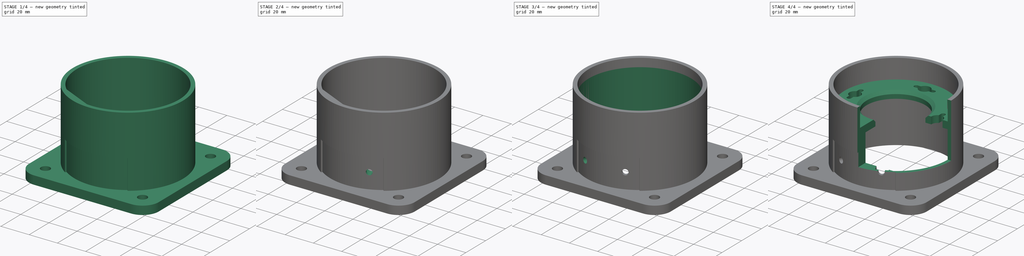
[diagram: build sequence overview — one tinted view per stage of 4, left to right]
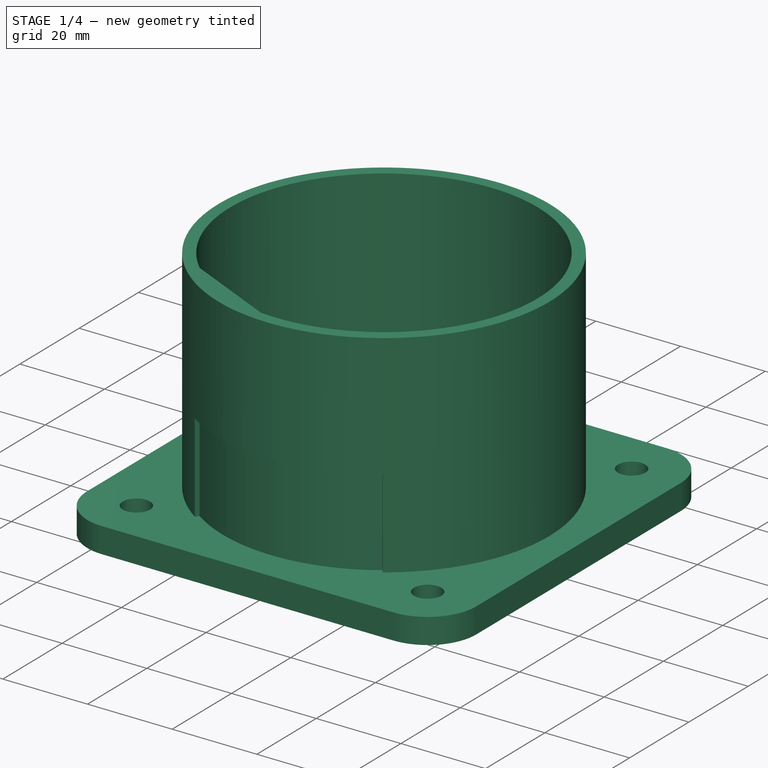
[diagram: stage 1 of 4 — iso view after this stage's code; geometry added in this stage tinted green]
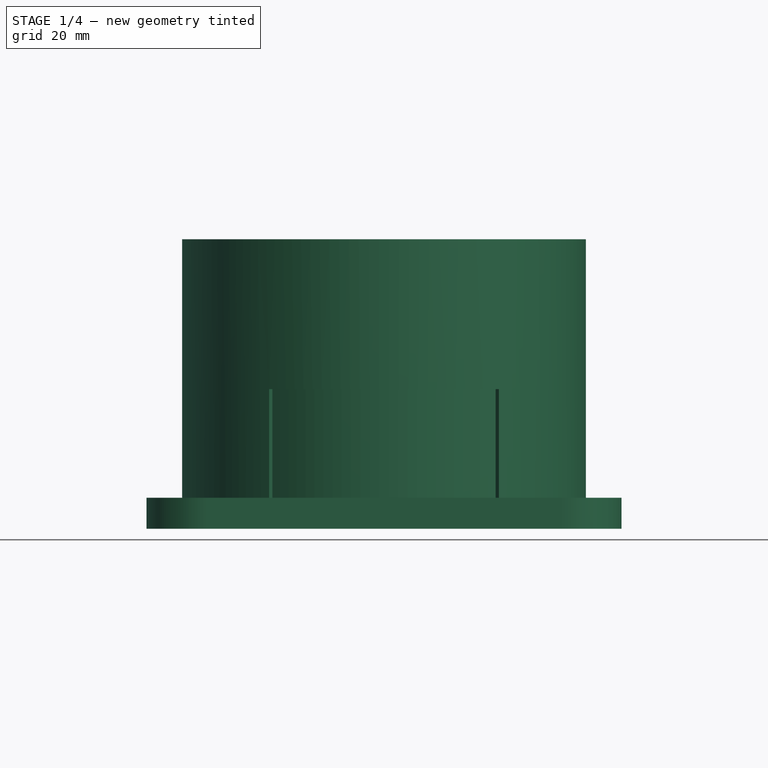
[diagram: stage 1 of 4 — front view after this stage's code; geometry added in this stage tinted green]
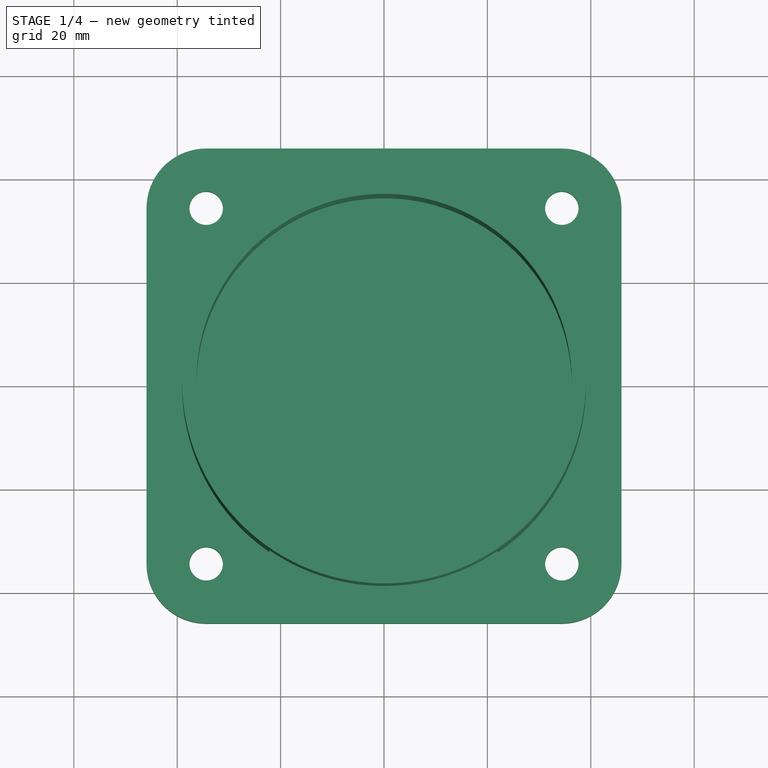
[diagram: stage 1 of 4 — top view after this stage's code; geometry added in this stage tinted green]
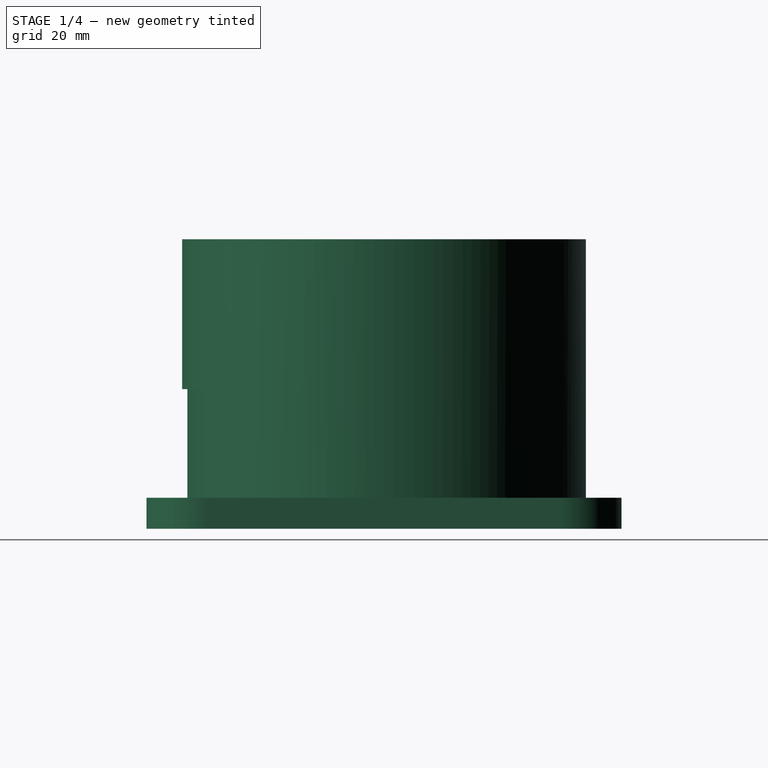
[diagram: stage 1 of 4 — right view after this stage's code; geometry added in this stage tinted green]
FCSTD DOCUMENT  (FreeCAD 0.21R33771 (Git))
Label: ex21
License: All rights reserved
LicenseURL: https://en.wikipedia.org/wiki/All_rights_reserved
objects: Sketcher::SketchObject×13, PartDesign::Pocket×9, PartDesign::Pad×4, PartDesign::Chamfer×1, PartDesign::Body×1
note: 42 computed .brp shape members not serialized (recipe doc carries the construction recipe); baked Part::Feature solids carry a one-line shape summary decoded from their .brp

FEATURE [Sketcher::SketchObject] Sketch
  FullyConstrained = false
  MapMode = 5
  Support = -> [XY_Plane]
  sketch-geometry (14):
    g0: ArcOfCircle CenterX=34.3949 CenterY=-34.3949 CenterZ=0 NormalX=0 NormalY=0 NormalZ=1 AngleXU=0 Radius=11.5446 StartAngle=4.71239 EndAngle=6.28319
    g1: LineSegment StartX=34.3949 StartY=-45.9395 StartZ=0 EndX=-34.3949 EndY=-45.9395 EndZ=0
    g2: ArcOfCircle CenterX=-34.3949 CenterY=-34.3949 CenterZ=0 NormalX=0 NormalY=0 NormalZ=1 AngleXU=0 Radius=11.5446 StartAngle=3.14159 EndAngle=4.71239
    g3: LineSegment StartX=-45.9395 StartY=-34.3949 StartZ=0 EndX=-45.9395 EndY=34.3949 EndZ=0
    g4: ArcOfCircle CenterX=-34.3949 CenterY=34.3949 CenterZ=0 NormalX=0 NormalY=0 NormalZ=1 AngleXU=0 Radius=11.5446 StartAngle=1.5708 EndAngle=3.14159
    g5: LineSegment StartX=-34.3949 StartY=45.9395 StartZ=0 EndX=34.3949 EndY=45.9395 EndZ=0
    g6: ArcOfCircle CenterX=34.3949 CenterY=34.3949 CenterZ=0 NormalX=0 NormalY=0 NormalZ=1 AngleXU=0 Radius=11.5446 StartAngle=0 EndAngle=1.5708
    g7: LineSegment StartX=45.9395 StartY=34.3949 StartZ=0 EndX=45.9395 EndY=-34.3949 EndZ=0
    g8: GeomPoint X=45.9395 Y=-45.9395 Z=0
    g9: GeomPoint X=-45.9395 Y=45.9395 Z=0
    g10: Circle CenterX=-34.3949 CenterY=34.3949 CenterZ=0 NormalX=0 NormalY=0 NormalZ=1 AngleXU=0 Radius=3.23141
    g11: Circle CenterX=34.3949 CenterY=34.3949 CenterZ=0 NormalX=0 NormalY=0 NormalZ=1 AngleXU=0 Radius=3.23141
    g12: Circle CenterX=-34.3949 CenterY=-34.3949 CenterZ=0 NormalX=0 NormalY=0 NormalZ=1 AngleXU=0 Radius=3.23141
    g13: Circle CenterX=34.3949 CenterY=-34.3949 CenterZ=0 NormalX=0 NormalY=0 NormalZ=1 AngleXU=0 Radius=3.23141
  constraints (28):
    c: Tangent(g0,g1) = 1.5708
    c: Tangent(g1,g2) = 1.5708
    c: Tangent(g2,g3) = 1.5708
    c: Tangent(g3,g4) = 1.5708
    c: Tangent(g4,g5) = 1.5708
    c: Tangent(g5,g6) = 1.5708
    c: Tangent(g6,g7) = 1.5708
    c: Tangent(g7,g0) = 1.5708
    c: Horizontal(g1)
    c: Horizontal(g5)
    c: Vertical(g3)
    c: Vertical(g7)
    c: Equal(g0,g2)
    c: Equal(g2,g4)
    c: Equal(g4,g6)
    c: PointOnObject(g8,g1)
    c: PointOnObject(g8,g7)
    c: PointOnObject(g9,g3)
    c: PointOnObject(g9,g5)
    c: Symmetric(g4,g0,g-1)
    c: Coincident(g10,g4)
    c: Coincident(g11,g6)
    c: Coincident(g12,g2)
    c: Coincident(g13,g0)
    c: Equal(g10,g11)
    c: Equal(g11,g13)
    c: Equal(g13,g12)
    c: Equal(g5,g3)
FEATURE [PartDesign::Pad] Pad
  Direction = (0,0,1)
  Length = 6
  Length2 = 10
  Profile = -> Sketch
  ReferenceAxis = -> Sketch [N_Axis]
  Type = 0
FEATURE [Sketcher::SketchObject] Sketch001
  FullyConstrained = false
  MapMode = 5
  Placement = pos=(0,0,6) rot=(0,0,1;0rad)
  Support = -> [Pad]
  sketch-geometry (2):
    g0: Circle CenterX=0 CenterY=0 CenterZ=0 NormalX=0 NormalY=0 NormalZ=1 AngleXU=0 Radius=39.0534
    g1: Circle CenterX=0 CenterY=0 CenterZ=0 NormalX=0 NormalY=0 NormalZ=1 AngleXU=0 Radius=36.3111
  constraints (2):
    c: Coincident(g0,g-1)
    c: Coincident(g1,g0)
FEATURE [PartDesign::Pad] Pad001
  BaseFeature = -> Pad
  Direction = (0,0,1)
  Length = 50
  Length2 = 10
  Profile = -> Sketch001
  ReferenceAxis = -> Sketch001 [N_Axis]
  Type = 0
FEATURE [Sketcher::SketchObject] Sketch002
  FullyConstrained = false
  MapMode = 5
  Placement = pos=(0,0,6) rot=(0,0,1;0rad)
  Support = -> [Pad]
  sketch-geometry (6):
    g0: ArcOfCircle CenterX=0 CenterY=0 CenterZ=0 NormalX=0 NormalY=0 NormalZ=1 AngleXU=0 Radius=38.053 StartAngle=4.1088 EndAngle=5.31598
    g1: ArcOfCircle CenterX=0 CenterY=0 CenterZ=0 NormalX=0 NormalY=0 NormalZ=1 AngleXU=0 Radius=40 StartAngle=4.10605 EndAngle=5.31873
    g2: LineSegment StartX=-21.5988 StartY=-31.3292 StartZ=0 EndX=-22.7947 EndY=-32.8695 EndZ=0
    g3: LineSegment StartX=21.5988 StartY=-31.3292 StartZ=0 EndX=22.7947 EndY=-32.8695 EndZ=0
    g4: GeomPoint X=-21.5988 Y=-31.3292 Z=0
    g5: GeomPoint X=21.5988 Y=-31.3292 Z=0
  constraints (12):
    c: Coincident(g0,g-1)
    c: Coincident(g1,g0)
    c: PointOnObject(g4,g2)
    c: PointOnObject(g5,g3)
    c: PointOnObject(g5,g0)
    c: PointOnObject(g4,g0)
    c: Coincident(g1,g3)
    c: Coincident(g1,g2)
    c: Coincident(g0,g3)
    c: Coincident(g0,g2)
    c: Distance(g2) = 1.95
    c: Radius(g1) = 40
FEATURE [PartDesign::Pocket] Pocket
  BaseFeature = -> Pad001
  Direction = (0,0,-1)
  Length = 21
  Length2 = 5
  Profile = -> Sketch002
  ReferenceAxis = -> Sketch002 [N_Axis]
  Reversed = true
  Type = 0
FEATURE [Sketcher::SketchObject] Sketch003
  FullyConstrained = false
  MapMode = 5
  Placement = pos=(0,0,6) rot=(0,0,1;0rad)
  Support = -> [Pocket]
  sketch-geometry (3):
    g0: ArcOfCircle CenterX=0 CenterY=0 CenterZ=0 NormalX=0 NormalY=0 NormalZ=1 AngleXU=0 Radius=36.43 StartAngle=3.5773 EndAngle=5.84748
    g1: LineSegment StartX=-33.0264 StartY=-15.3753 StartZ=0 EndX=0 EndY=-30.7757 EndZ=0
    g2: LineSegment StartX=0 StartY=-30.7757 StartZ=0 EndX=33.0264 EndY=-15.3753 EndZ=0
  constraints (8):
    c: Coincident(g0,g-1)
    c: Radius(g0) = 36.43
    c: PointOnObject(g1,g-2)
    c: Coincident(g1,g2)
    c: Horizontal(g2,g1)
    c: Angle(g2,g1) = 2.26893
    c: Coincident(g0,g2)
    c: Coincident(g0,g1)
FEATURE [PartDesign::Pad] Pad002
  BaseFeature = -> Pocket
  Direction = (0,0,1)
  Length = 44
  Length2 = 10
  Profile = -> Sketch003
  ReferenceAxis = -> Sketch003 [N_Axis]
  Type = 0
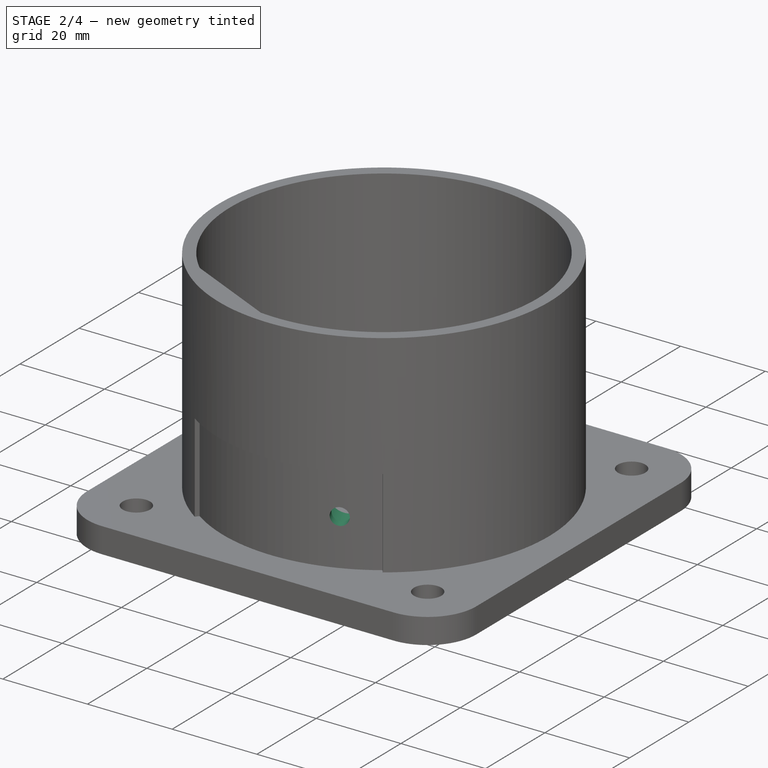
[diagram: stage 2 of 4 — iso view after this stage's code; geometry added in this stage tinted green]
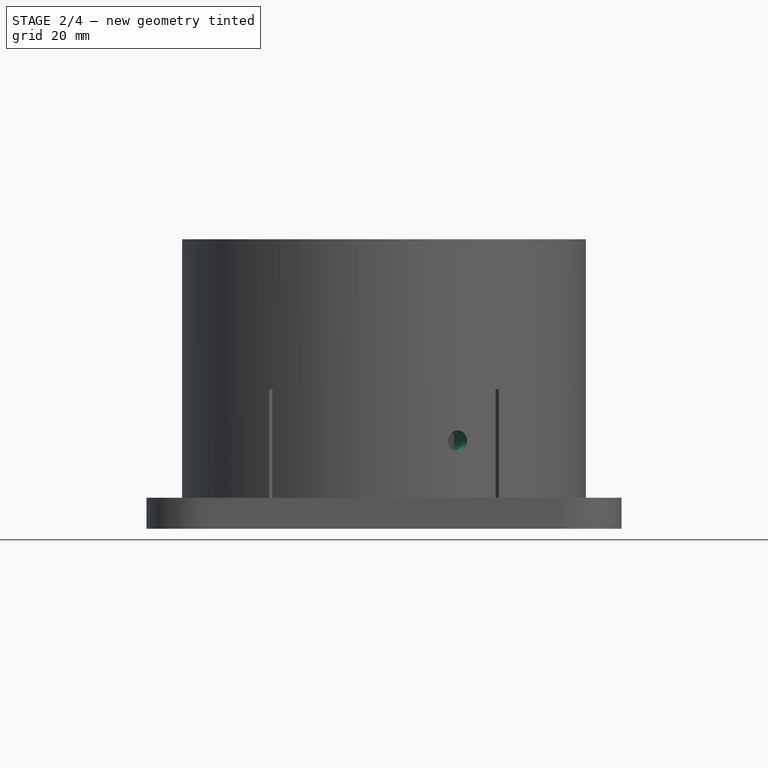
[diagram: stage 2 of 4 — front view after this stage's code; geometry added in this stage tinted green]
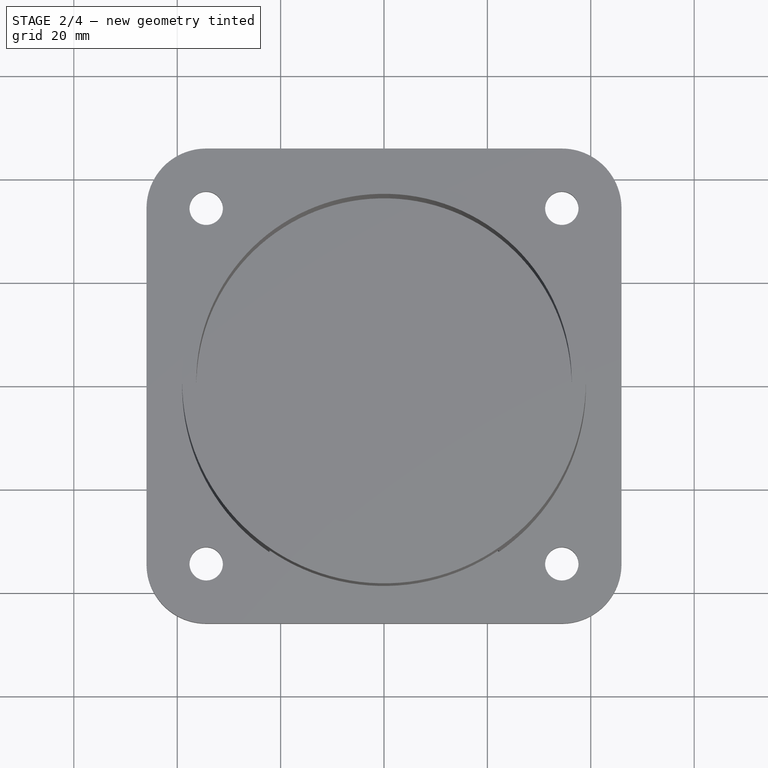
[diagram: stage 2 of 4 — top view after this stage's code; geometry added in this stage tinted green]
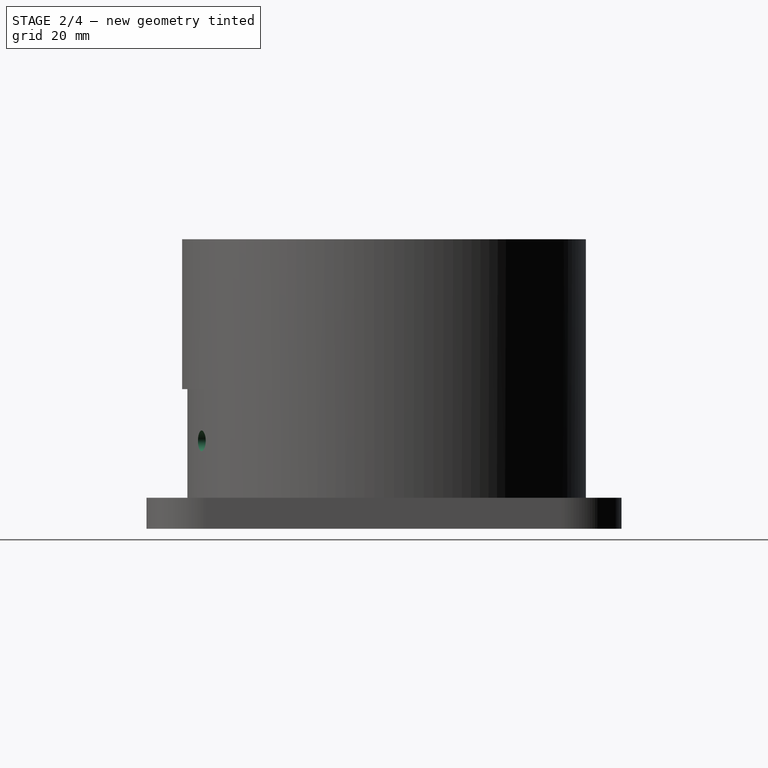
[diagram: stage 2 of 4 — right view after this stage's code; geometry added in this stage tinted green]
FEATURE [Sketcher::SketchObject] Sketch004
  FullyConstrained = true
  MapMode = 5
  Placement = pos=(-11.7878,-25.279,0) rot=(0.15487,0.698575,0.698575;2.83429rad)
  Support = -> [Pad002]
  sketch-geometry (1):
    g0: Circle CenterX=-2 CenterY=17 CenterZ=0 NormalX=0 NormalY=0 NormalZ=1 AngleXU=0 Radius=4
  constraints (3):
    c: DistanceY(g-1,g0) = 17
    c: DistanceX(g0,g-1) = 2
    c: Radius(g0) = 4
FEATURE [Sketcher::SketchObject] Sketch005
  FullyConstrained = true
  MapMode = 5
  Placement = pos=(11.7878,-25.279,0) rot=(-0.15487,0.698575,0.698575;3.44889rad)
  Support = -> [Pad002]
  sketch-geometry (1):
    g0: Circle CenterX=2 CenterY=17 CenterZ=0 NormalX=0 NormalY=0 NormalZ=1 AngleXU=0 Radius=4
  constraints (3):
    c: DistanceY(g-1,g0) = 17
    c: DistanceX(g-1,g0) = 2
    c: Radius(g0) = 4
FEATURE [PartDesign::Pocket] Pocket001
  BaseFeature = -> Pad002
  Direction = (0.422618,-0.906308,0)
  Length = 8
  Length2 = 5
  Profile = -> Sketch005
  ReferenceAxis = -> Sketch005 [N_Axis]
  Type = 0
FEATURE [PartDesign::Pocket] Pocket002
  BaseFeature = -> Pocket001
  Direction = (-0.422618,-0.906308,0)
  Length = 8
  Length2 = 5
  Profile = -> Sketch004
  ReferenceAxis = -> Sketch004 [N_Axis]
  Type = 0
FEATURE [Sketcher::SketchObject] Sketch006
  FullyConstrained = true
  MapMode = 5
  Placement = pos=(11.7878,-25.279,0) rot=(-0.15487,0.698575,0.698575;3.44889rad)
  Support = -> [Pad002]
  sketch-geometry (1):
    g0: Circle CenterX=2 CenterY=17 CenterZ=0 NormalX=0 NormalY=0 NormalZ=1 AngleXU=0 Radius=2
  constraints (3):
    c: DistanceY(g-1,g0) = 17
    c: DistanceX(g-1,g0) = 2
    c: Radius(g0) = 2
FEATURE [Sketcher::SketchObject] Sketch007
  FullyConstrained = true
  MapMode = 5
  Placement = pos=(-11.7878,-25.279,0) rot=(0.15487,0.698575,0.698575;2.83429rad)
  Support = -> [Pad002]
  sketch-geometry (1):
    g0: Circle CenterX=-2 CenterY=17 CenterZ=0 NormalX=0 NormalY=0 NormalZ=1 AngleXU=0 Radius=2
  constraints (3):
    c: DistanceY(g-1,g0) = 17
    c: DistanceX(g0,g-1) = 2
    c: Radius(g0) = 2
FEATURE [PartDesign::Pocket] Pocket003
  BaseFeature = -> Pocket002
  Direction = (0.422618,-0.906308,0)
  Length = 5
  Length2 = 5
  Profile = -> Sketch006
  ReferenceAxis = -> Sketch006 [N_Axis]
  Type = 1
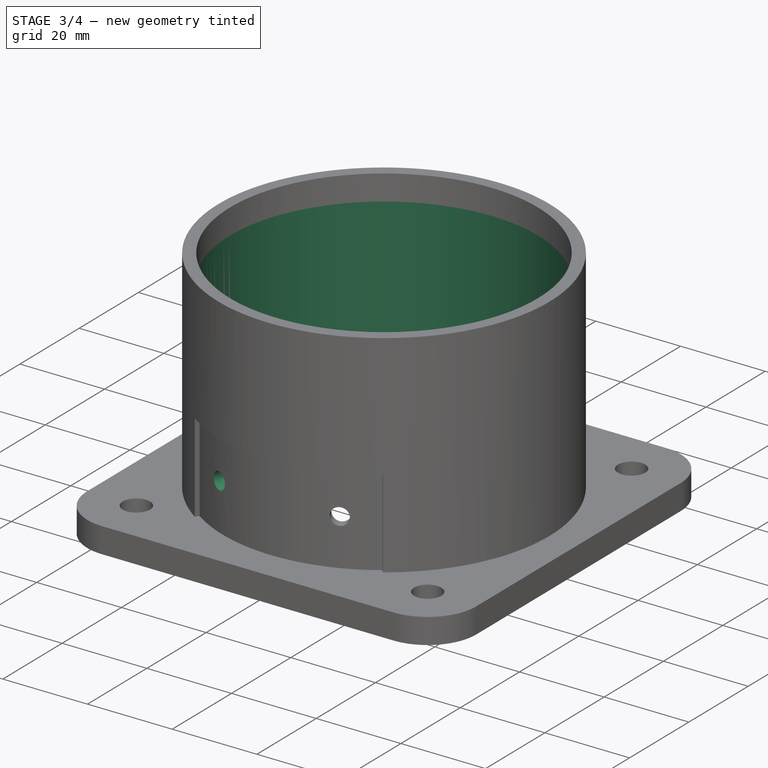
[diagram: stage 3 of 4 — iso view after this stage's code; geometry added in this stage tinted green]
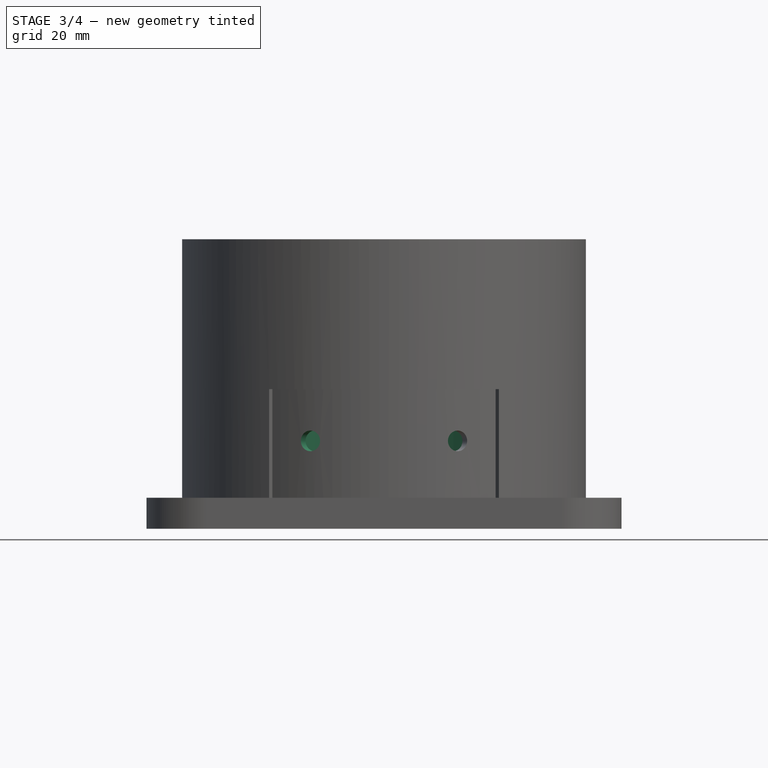
[diagram: stage 3 of 4 — front view after this stage's code; geometry added in this stage tinted green]
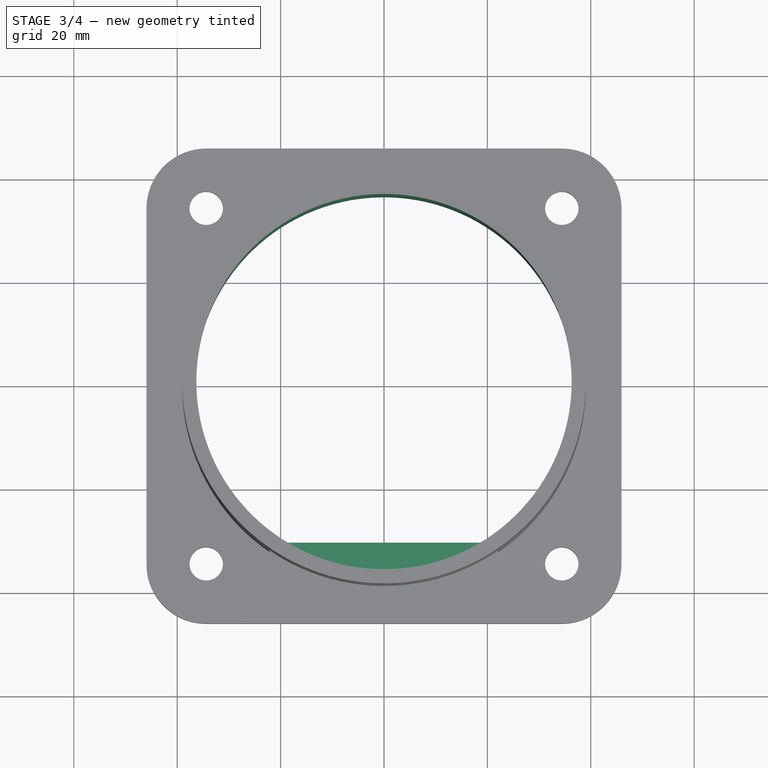
[diagram: stage 3 of 4 — top view after this stage's code; geometry added in this stage tinted green]
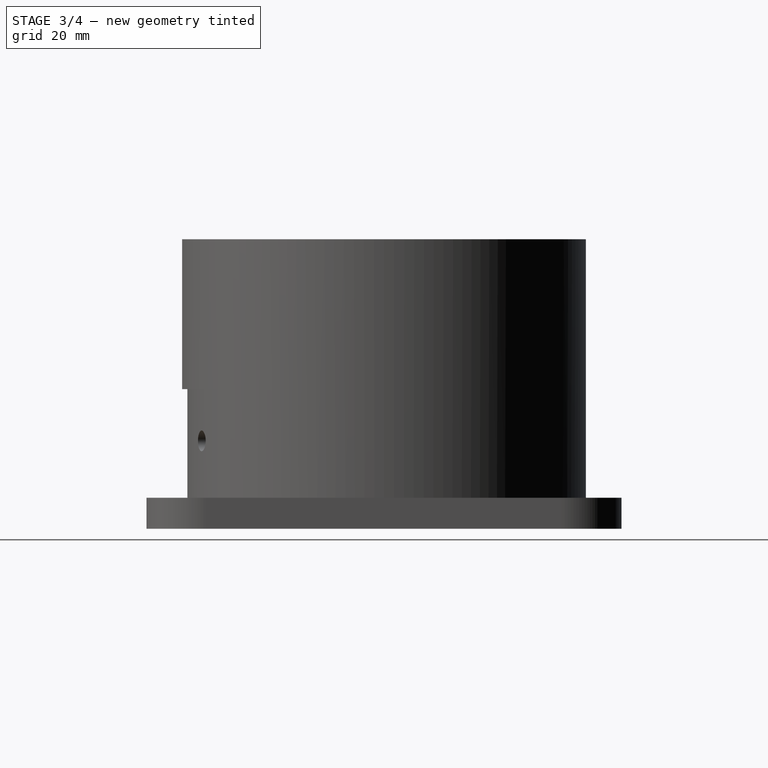
[diagram: stage 3 of 4 — right view after this stage's code; geometry added in this stage tinted green]
FEATURE [PartDesign::Pocket] Pocket004
  BaseFeature = -> Pocket003
  Direction = (-0.422618,-0.906308,0)
  Length = 5
  Length2 = 5
  Profile = -> Sketch007
  ReferenceAxis = -> Sketch007 [N_Axis]
  Type = 1
FEATURE [Sketcher::SketchObject] Sketch008
  FullyConstrained = false
  MapMode = 5
  Placement = pos=(0,0,50) rot=(0,0,1;0rad)
  Support = -> [Pocket004]
  sketch-geometry (2):
    g0: ArcOfCircle CenterX=0 CenterY=0 CenterZ=0 NormalX=0 NormalY=0 NormalZ=1 AngleXU=0 Radius=36.6 StartAngle=5.28105 EndAngle=10.4269
    g1: LineSegment StartX=19.7092 StartY=-30.84 StartZ=0 EndX=-19.7092 EndY=-30.84 EndZ=0
  constraints (5):
    c: Coincident(g0,g-1)
    c: Horizontal(g1)
    c: Radius(g0) = 36.6
    c: Coincident(g0,g1)
    c: Coincident(g0,g1)
FEATURE [PartDesign::Pocket] Pocket005
  BaseFeature = -> Pocket004
  Direction = (0,0,-1)
  Length = 5
  Length2 = 5
  Profile = -> Sketch008
  ReferenceAxis = -> Sketch008 [N_Axis]
  Type = 1
FEATURE [Sketcher::SketchObject] Sketch009
  FullyConstrained = false
  MapMode = 5
  Placement = pos=(0,0,50) rot=(0,0,1;0rad)
  Support = -> [Pocket005]
  sketch-geometry (1):
    g0: Circle CenterX=0 CenterY=0 CenterZ=0 NormalX=0 NormalY=0 NormalZ=1 AngleXU=0 Radius=36.4428
  constraints (1):
    c: Coincident(g0,g-1)
FEATURE [PartDesign::Pocket] Pocket006
  BaseFeature = -> Pocket005
  Direction = (0,0,-1)
  Length = 13
  Length2 = 5
  Profile = -> Sketch009
  ReferenceAxis = -> Sketch009 [N_Axis]
  Type = 0
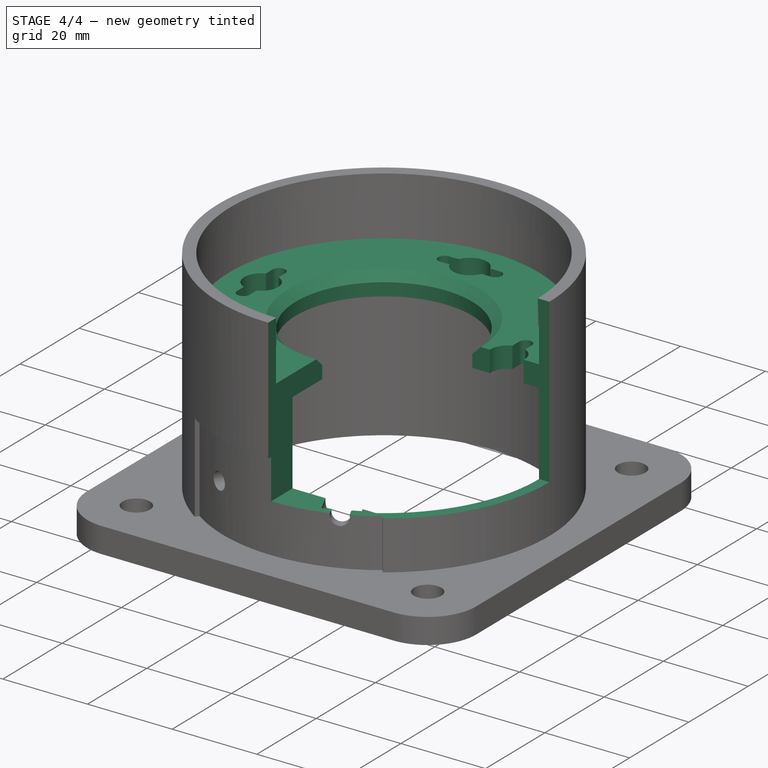
[diagram: stage 4 of 4 — iso view after this stage's code; geometry added in this stage tinted green]
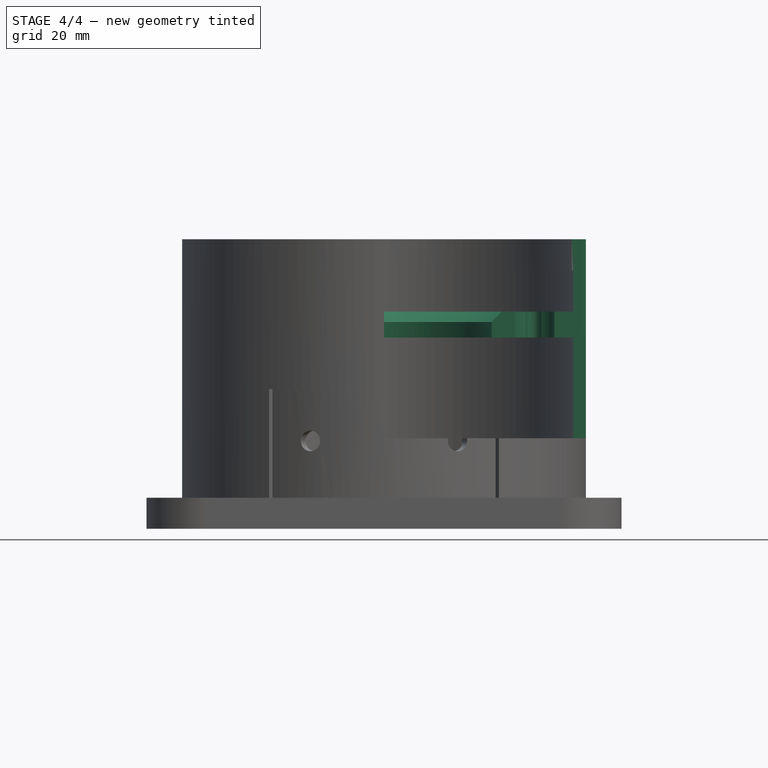
[diagram: stage 4 of 4 — front view after this stage's code; geometry added in this stage tinted green]
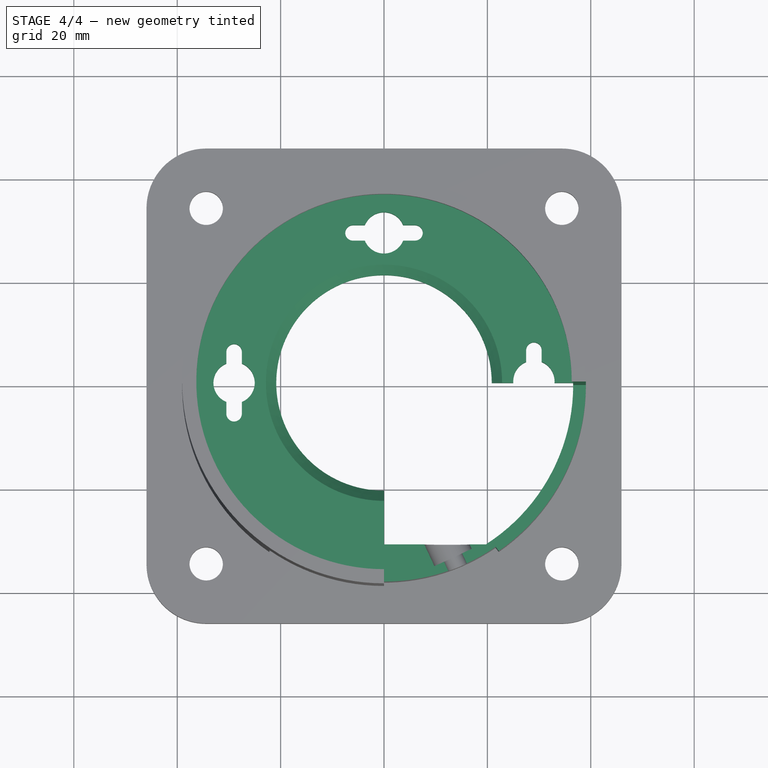
[diagram: stage 4 of 4 — top view after this stage's code; geometry added in this stage tinted green]
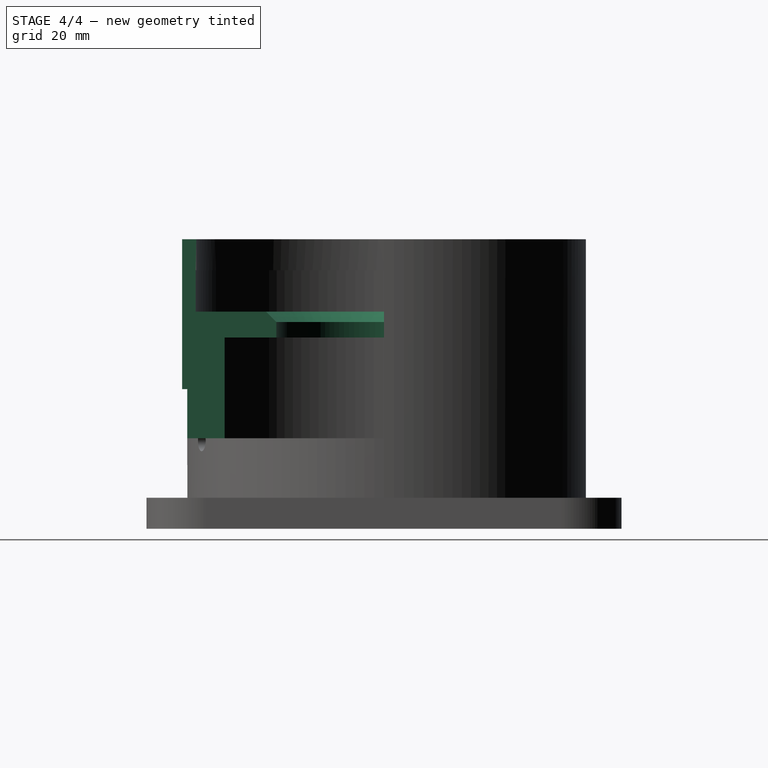
[diagram: stage 4 of 4 — right view after this stage's code; geometry added in this stage tinted green]
FEATURE [Sketcher::SketchObject] Sketch010
  FullyConstrained = false
  MapMode = 5
  Placement = pos=(0,0,37) rot=(0,0,1;0rad)
  Support = -> [Pocket006]
  sketch-geometry (2):
    g0: Circle CenterX=0 CenterY=0 CenterZ=0 NormalX=0 NormalY=0 NormalZ=1 AngleXU=0 Radius=37.1702
    g1: Circle CenterX=0 CenterY=0 CenterZ=0 NormalX=0 NormalY=0 NormalZ=1 AngleXU=0 Radius=20.8445
  constraints (2):
    c: Coincident(g0,g-1)
    c: Coincident(g1,g0)
FEATURE [PartDesign::Pad] Pad003
  BaseFeature = -> Pocket006
  Direction = (0,0,1)
  Length = 5
  Length2 = 10
  Profile = -> Sketch010
  ReferenceAxis = -> Sketch010 [N_Axis]
  Type = 0
FEATURE [PartDesign::Chamfer] Chamfer
  Angle = 45
  Base = -> Pad003 [Edge73]
  BaseFeature = -> Pad003
  ChamferType = 0
  FlipDirection = false
  Size = 2
  Size2 = 1
  SupportTransform = false
  UseAllEdges = false
FEATURE [Sketcher::SketchObject] Sketch012
  FullyConstrained = false
  MapMode = 5
  Placement = pos=(0,0,42) rot=(0,0,1;0rad)
  Support = -> [Chamfer]
  sketch-geometry (25):
    g0: Circle CenterX=0 CenterY=0 CenterZ=0 NormalX=0 NormalY=0 NormalZ=1 AngleXU=0 Radius=29
    g1: ArcOfCircle CenterX=-29 CenterY=0 CenterZ=0 NormalX=0 NormalY=0 NormalZ=1 AngleXU=0 Radius=4 StartAngle=1.95519 EndAngle=4.32799
    g2: ArcOfCircle CenterX=-29 CenterY=6 CenterZ=0 NormalX=0 NormalY=0 NormalZ=1 AngleXU=0 Radius=1.5 StartAngle=0 EndAngle=3.14159
    g3: ArcOfCircle CenterX=-29 CenterY=-6 CenterZ=0 NormalX=0 NormalY=0 NormalZ=1 AngleXU=0 Radius=1.5 StartAngle=3.14159 EndAngle=6.28319
    g4: LineSegment StartX=-30.5 StartY=6 StartZ=0 EndX=-30.5 EndY=3.7081 EndZ=0
    g5: LineSegment StartX=-27.5 StartY=-6 StartZ=0 EndX=-27.5 EndY=-3.7081 EndZ=0
    g6: ArcOfCircle CenterX=0 CenterY=29 CenterZ=0 NormalX=0 NormalY=0 NormalZ=1 AngleXU=0 Radius=4 StartAngle=3.52599 EndAngle=5.89879
    g7: ArcOfCircle CenterX=28.9981 CenterY=0.328725 CenterZ=0 NormalX=0 NormalY=0 NormalZ=1 AngleXU=0 Radius=4 StartAngle=1.95519 EndAngle=4.32799
    g8: ArcOfCircle CenterX=-6 CenterY=29 CenterZ=0 NormalX=0 NormalY=0 NormalZ=1 AngleXU=0 Radius=1.5 StartAngle=1.5708 EndAngle=4.71239
    g9: ArcOfCircle CenterX=6 CenterY=29 CenterZ=0 NormalX=0 NormalY=0 NormalZ=1 AngleXU=0 Radius=1.5 StartAngle=4.71239 EndAngle=7.85398
    g10: LineSegment StartX=-6 StartY=27.5 StartZ=0 EndX=-3.7081 EndY=27.5 EndZ=0
    g11: LineSegment StartX=6 StartY=30.5 StartZ=0 EndX=3.7081 EndY=30.5 EndZ=0
    g12: ArcOfCircle CenterX=28.9981 CenterY=6.32872 CenterZ=0 NormalX=0 NormalY=0 NormalZ=1 AngleXU=0 Radius=1.5 StartAngle=3e-16 EndAngle=3.14159
    g13: ArcOfCircle CenterX=28.9981 CenterY=-5.67128 CenterZ=0 NormalX=0 NormalY=0 NormalZ=1 AngleXU=0 Radius=1.5 StartAngle=3.14159 EndAngle=6.28319
    g14: LineSegment StartX=27.4981 StartY=6.32872 StartZ=0 EndX=27.4981 EndY=4.03682 EndZ=0
    g15: LineSegment StartX=30.4981 StartY=-5.67128 StartZ=0 EndX=30.4981 EndY=-3.37937 EndZ=0
    g16: LineSegment StartX=-30.5 StartY=-3.7081 StartZ=0 EndX=-30.5 EndY=-6 EndZ=0
    g17: LineSegment StartX=-27.5 StartY=3.7081 StartZ=0 EndX=-27.5 EndY=6 EndZ=0
    g18: ArcOfCircle CenterX=-29 CenterY=0 CenterZ=0 NormalX=0 NormalY=0 NormalZ=1 AngleXU=0 Radius=4 StartAngle=5.09679 EndAngle=7.46958
    g19: LineSegment StartX=27.4981 StartY=-3.37937 StartZ=0 EndX=27.4981 EndY=-5.67128 EndZ=0
    g20: LineSegment StartX=30.4981 StartY=4.03682 StartZ=0 EndX=30.4981 EndY=6.32872 EndZ=0
    g21: ArcOfCircle CenterX=28.9981 CenterY=0.328725 CenterZ=0 NormalX=0 NormalY=0 NormalZ=1 AngleXU=0 Radius=4 StartAngle=5.09679 EndAngle=7.46958
    g22: LineSegment StartX=3.7081 StartY=27.5 StartZ=0 EndX=6 EndY=27.5 EndZ=0
    g23: LineSegment StartX=-3.7081 StartY=30.5 StartZ=0 EndX=-6 EndY=30.5 EndZ=0
    g24: ArcOfCircle CenterX=0 CenterY=29 CenterZ=0 NormalX=0 NormalY=0 NormalZ=1 AngleXU=0 Radius=4 StartAngle=0.384397 EndAngle=2.7572
  constraints (56):
    c: Coincident(g0,g-1)
    c: PointOnObject(g1,g0)
    c: Tangent(g2,g4) = -1.5708
    c: Coincident(g16,g3) = -1.5708
    c: Tangent(g3,g5) = -1.5708
    c: Coincident(g17,g2) = -1.5708
    c: Equal(g2,g3)
    c: DistanceX(g2,g2) = 3
    c: DistanceY(g3,g2) = 12
    c: Vertical(g2,g3)
    c: Symmetric(g2,g3,g1)
    c: PointOnObject(g1,g-1)
    c: Radius(g1) = 4
    c: Radius(g0) = 29
    c: PointOnObject(g6,g0)
    c: PointOnObject(g7,g0)
    c: Equal(g7,g6)
    c: Equal(g6,g1)
    c: Tangent(g8,g10) = -1.5708
    c: Coincident(g22,g9) = -1.5708
    c: Tangent(g9,g11) = -1.5708
    c: Coincident(g23,g8) = -1.5708
    c: Equal(g8,g9)
    c: Tangent(g12,g14) = -1.5708
    c: Coincident(g19,g13) = -1.5708
    c: Tangent(g13,g15) = -1.5708
    c: Coincident(g20,g12) = -1.5708
    c: Equal(g12,g13)
    c: DistanceX(g10,g22) = 12
    c: DistanceY(g8,g8) = 3
    c: Symmetric(g8,g9,g6)
    c: PointOnObject(g6,g-2)
    c: Horizontal(g8,g6)
    c: Vertical(g12,g13)
    c: Symmetric(g12,g13,g7)
    c: DistanceX(g12,g12) = 3
    c: DistanceY(g13,g12) = 12
    c: Coincident(g1,g4)
    c: PointOnObject(g5,g1)
    c: Coincident(g17,g18)
    c: Equal(g1,g18)
    c: Coincident(g1,g16)
    c: Coincident(g1,g18)
    c: PointOnObject(g18,g5)
    c: Coincident(g7,g14)
    c: Coincident(g20,g21)
    c: Equal(g7,g21)
    c: Coincident(g21,g15)
    c: Coincident(g7,g21)
    c: Coincident(g7,g19)
    c: Coincident(g10,g6)
    c: Coincident(g23,g24)
    c: Equal(g6,g24)
    c: Coincident(g24,g11)
    c: Coincident(g6,g24)
    c: Coincident(g6,g22)
FEATURE [PartDesign::Pocket] Pocket007
  BaseFeature = -> Chamfer
  Direction = (0,0,-1)
  Length = 5
  Length2 = 5
  Profile = -> Sketch012
  ReferenceAxis = -> Sketch012 [N_Axis]
  Type = 0
FEATURE [Sketcher::SketchObject] Sketch013
  FullyConstrained = false
  MapMode = 5
  Placement = pos=(0,0,42) rot=(0,0,1;0rad)
  Support = -> [Pocket007]
  sketch-geometry (4):
    g0: LineSegment StartX=0 StartY=0 StartZ=0 EndX=50.9534 EndY=0 EndZ=0
    g1: LineSegment StartX=50.9534 StartY=0 StartZ=0 EndX=50.9534 EndY=-47.4616 EndZ=0
    g2: LineSegment StartX=50.9534 StartY=-47.4616 StartZ=0 EndX=0 EndY=-47.4616 EndZ=0
    g3: LineSegment StartX=0 StartY=-47.4616 StartZ=0 EndX=0 EndY=0 EndZ=0
  constraints (9):
    c: Coincident(g0,g1)
    c: Coincident(g1,g2)
    c: Coincident(g2,g3)
    c: Coincident(g3,g0)
    c: Horizontal(g0)
    c: Horizontal(g2)
    c: Vertical(g1)
    c: Vertical(g3)
    c: Coincident(g0,g-1)
FEATURE [PartDesign::Pocket] Pocket008
  BaseFeature = -> Pocket007
  Direction = (0,0,-1)
  Length = 49
  Length2 = 5
  Midplane = true
  Profile = -> Sketch013
  ReferenceAxis = -> Sketch013 [N_Axis]
  Type = 0
FEATURE [PartDesign::Body] Body
  Group = -> [Sketch,Pad,Sketch001,Pad001,Sketch002,Pocket,Sketch003,Pad002,Sketch004,Sketch005,Pocket001,Pocket002,Sketch006,Sketch007,Pocket003,Pocket004,Sketch008,Pocket005,Sketch009,Pocket006,Sketch010,Pad003,Chamfer,Sketch012,Pocket007,Sketch013,Pocket008]
  Origin = -> Origin
  Tip = -> Pocket008
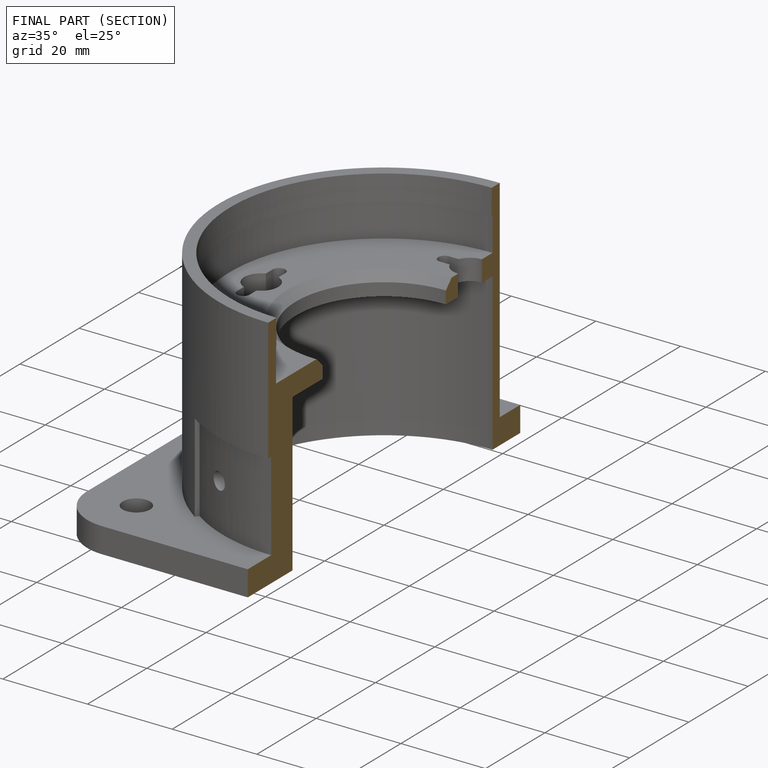
[diagram: finished part — half-section view (interior)]
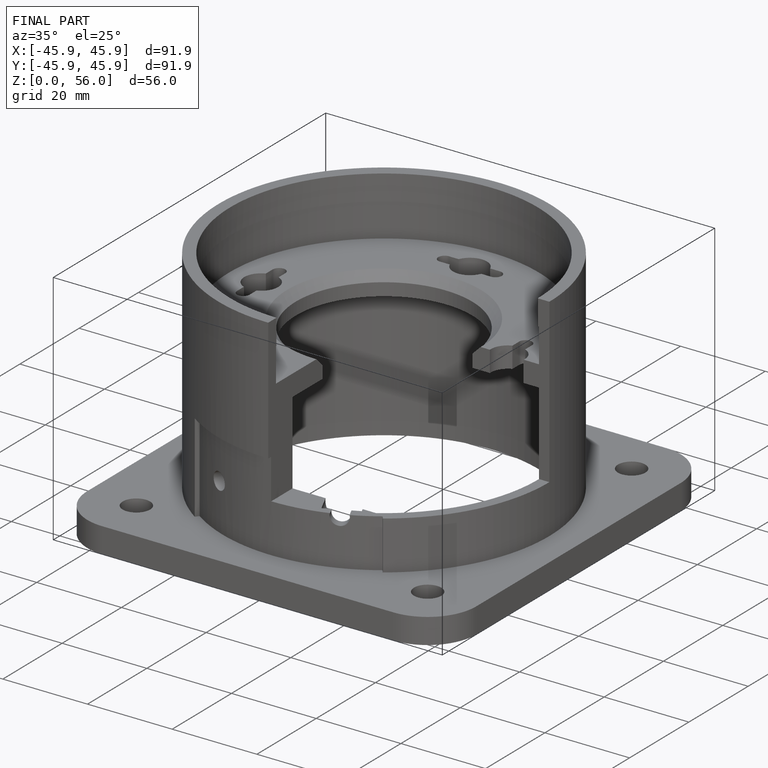
[diagram: finished part — iso view with bounding-box wireframe]
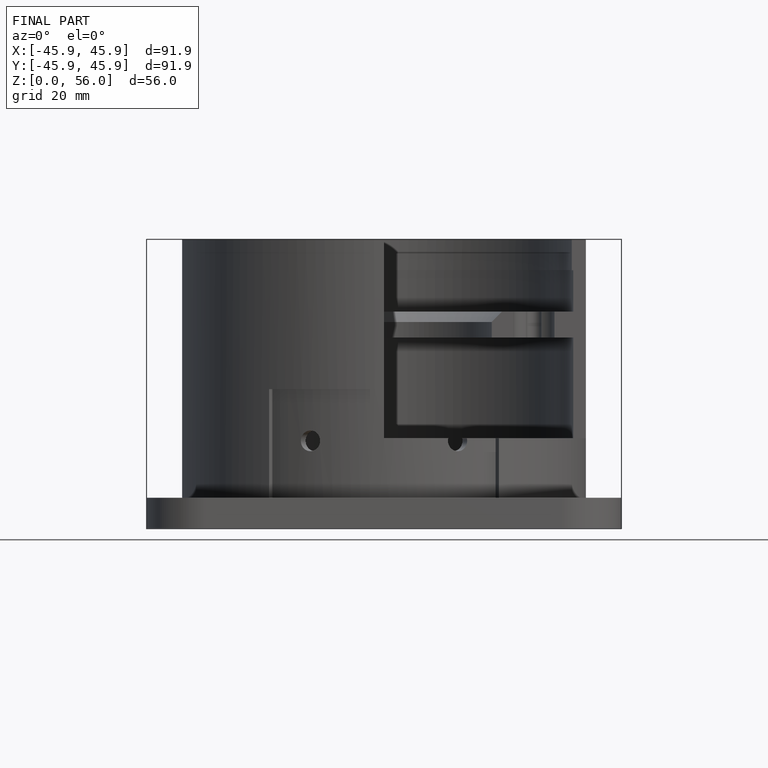
[diagram: finished part — front view with bounding-box wireframe]
